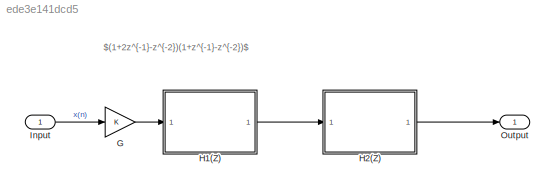
MODEL slx_ede3e141dcd5
KIND model
CONFIG AbsTol = auto
CONFIG EnableMultiTasking = off
CONFIG FixedStep = 1
CONFIG MaxStep = auto
CONFIG MinStep = auto
CONFIG PreLoadFcn = vars
CONFIG RelTol = 1e-3
CONFIG SampleTimeConstraint = Unconstrained
CONFIG SolverName = FixedStepAuto
CONFIG StartTime = 0.0
CONFIG StopTime = 10.0
BLOCK [Gain] G
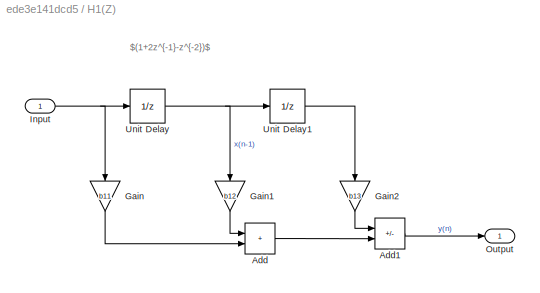
BLOCK [SubSystem] H1(Z)
  Ports = [1, 1]
  RequestExecContextInheritance = off
BLOCK [Sum] H1(Z)/Add
  IconShape = rectangular
  Ports = [2, 1]
BLOCK [Sum] H1(Z)/Add1
  IconShape = rectangular
  Inputs = -+
  Ports = [2, 1]
BLOCK [Gain] H1(Z)/Gain
  Gain = b11
  NameLocation = left
BLOCK [Gain] H1(Z)/Gain1
  Gain = b12
  NameLocation = left
BLOCK [Gain] H1(Z)/Gain2
  Gain = b13
  NameLocation = left
BLOCK [Inport] H1(Z)/Input
BLOCK [Outport] H1(Z)/Output
BLOCK [UnitDelay] H1(Z)/Unit Delay
  HasFrameUpgradeWarning = on
  SampleTime = -1
BLOCK [UnitDelay] H1(Z)/Unit Delay1
  HasFrameUpgradeWarning = on
  SampleTime = -1
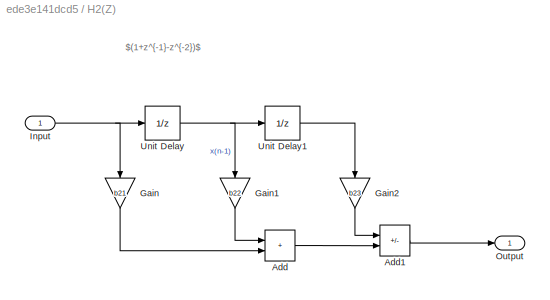
BLOCK [SubSystem] H2(Z)
  Ports = [1, 1]
  RequestExecContextInheritance = off
BLOCK [Sum] H2(Z)/Add
  IconShape = rectangular
  Ports = [2, 1]
BLOCK [Sum] H2(Z)/Add1
  IconShape = rectangular
  Inputs = -+
  Ports = [2, 1]
BLOCK [Gain] H2(Z)/Gain
  Gain = b21
  NameLocation = left
BLOCK [Gain] H2(Z)/Gain1
  Gain = b22
  NameLocation = left
BLOCK [Gain] H2(Z)/Gain2
  Gain = b23
  NameLocation = left
BLOCK [Inport] H2(Z)/Input
BLOCK [Outport] H2(Z)/Output
BLOCK [UnitDelay] H2(Z)/Unit Delay
  HasFrameUpgradeWarning = on
  SampleTime = -1
BLOCK [UnitDelay] H2(Z)/Unit Delay1
  HasFrameUpgradeWarning = on
  SampleTime = -1
BLOCK [Inport] Input
  OutDataTypeStr = double
  PortDimensions = 1
  SampleTime = [1,0]
  SamplingMode = Sample based
  SignalType = real
BLOCK [Outport] Output
  OutDataTypeStr = double
  PortDimensions = 1
  SampleTime = [1,0]
  SamplingMode = Sample based
  SignalType = real
ANNOTATION (root): $(1+2z^{-1}-z^{-2})(1+z^{-1}-z^{-2})$
ANNOTATION H1(Z): $(1+2z^{-1}-z^{-2})$
ANNOTATION H2(Z): $(1+z^{-1}-z^{-2})$
LINE G:1 -> H1(Z):1
LINE H1(Z)/Add1:1 -> H1(Z)/Output:1
LINE H1(Z)/Add:1 -> H1(Z)/Add1:2
LINE H1(Z)/Gain1:1 -> H1(Z)/Add:1
LINE H1(Z)/Gain2:1 -> H1(Z)/Add1:1
LINE H1(Z)/Gain:1 -> H1(Z)/Add:2
NET H1(Z)/Input:1 -> H1(Z)/Gain:1, H1(Z)/Unit Delay:1
LINE H1(Z)/Unit Delay1:1 -> H1(Z)/Gain2:1
NET H1(Z)/Unit Delay:1 -> H1(Z)/Gain1:1, H1(Z)/Unit Delay1:1
LINE H1(Z):1 -> H2(Z):1
LINE H2(Z)/Add1:1 -> H2(Z)/Output:1
LINE H2(Z)/Add:1 -> H2(Z)/Add1:2
LINE H2(Z)/Gain1:1 -> H2(Z)/Add:1
LINE H2(Z)/Gain2:1 -> H2(Z)/Add1:1
LINE H2(Z)/Gain:1 -> H2(Z)/Add:2
NET H2(Z)/Input:1 -> H2(Z)/Gain:1, H2(Z)/Unit Delay:1
LINE H2(Z)/Unit Delay1:1 -> H2(Z)/Gain2:1
NET H2(Z)/Unit Delay:1 -> H2(Z)/Gain1:1, H2(Z)/Unit Delay1:1
LINE H2(Z):1 -> Output:1
LINE Input:1 -> G:1
note: NET lines group one-source signal fan-out (src -> all destinations, sorted); 1:1 wires keep LINE
